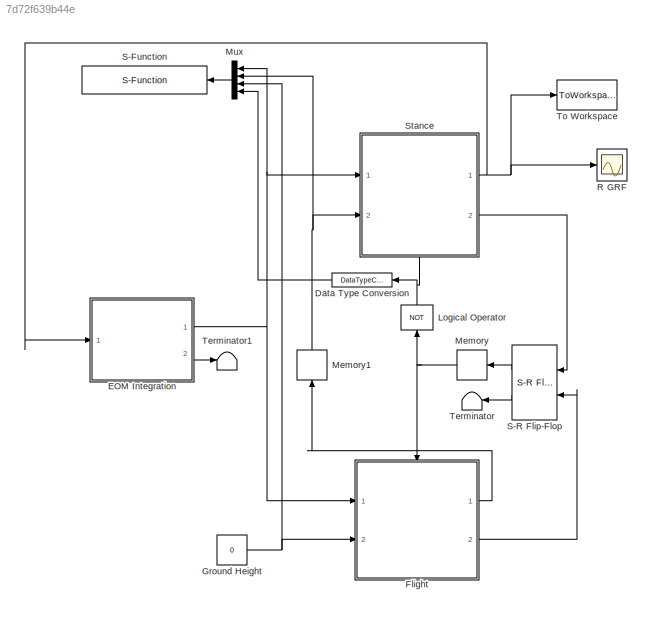
MODEL slx_7d72f639b44e
KIND model
CONFIG AbsTol = 1e-6
CONFIG FixedStep = auto
CONFIG InitFcn = rng shuffle
CONFIG MaxStep = 1e-3
CONFIG MinStep = auto
CONFIG RelTol = 1e-4
CONFIG SampleTimeConstraint = Unconstrained
CONFIG Solver = ode45
CONFIG SolverMode = Auto
CONFIG SolverName = ode45
CONFIG StartTime = 0.0
CONFIG StopTime = 50
BLOCK [DataTypeConversion] Data Type Conversion
  OutDataTypeStr = double
  RndMeth = Floor
  SaturateOnIntegerOverflow = off
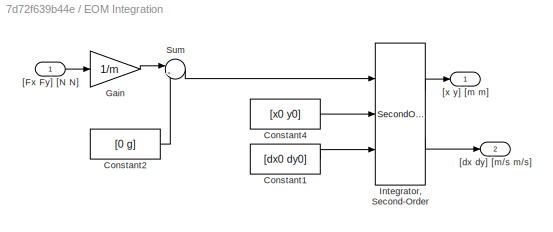
BLOCK [SubSystem] EOM Integration
  Ports = [1, 2]
  RequestExecContextInheritance = off
  Variant = off
BLOCK [Constant] EOM Integration/Constant1
  Value = [dx0 dy0]
BLOCK [Constant] EOM Integration/Constant2
  Value = [0 g]
BLOCK [Constant] EOM Integration/Constant4
  Value = [x0 y0]
BLOCK [Gain] EOM Integration/Gain
  Gain = 1/m
  OutDataTypeStr = Inherit: Inherit via internal rule
  ParamDataTypeStr = Inherit: Inherit via internal rule
  SaturateOnIntegerOverflow = off
BLOCK [SecondOrderIntegrator] EOM Integration/Integrator, Second-Order
  ICSourceDXDT = external
  ICSourceX = external
  Ports = [3, 2]
BLOCK [Sum] EOM Integration/Sum
  IconShape = round
  InputSameDT = off
  Inputs = |+-
  OutDataTypeStr = Inherit: Inherit via internal rule
  Ports = [2, 1]
  SaturateOnIntegerOverflow = off
BLOCK [Inport] EOM Integration/[Fx Fy] [N N]
  IconDisplay = Port number
BLOCK [Outport] EOM Integration/[dx dy] [m//s m//s]
  IconDisplay = Port number
  Port = 2
BLOCK [Outport] EOM Integration/[x y] [m m]
  IconDisplay = Port number
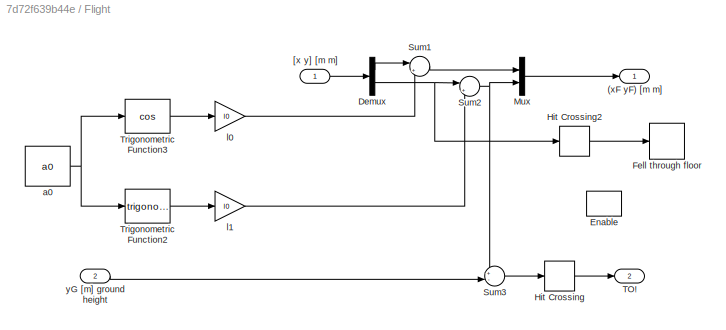
BLOCK [SubSystem] Flight
  Ports = [2, 2, 1]
  RequestExecContextInheritance = off
  Variant = off
BLOCK [Outport] Flight/(xF yF) [m m]
  AttributesFormatString = %<OutputWhenDisabled>
  IconDisplay = Port number
  InitialOutput = 0
BLOCK [Demux] Flight/Demux
  DisplayOption = bar
  Outputs = 2
  Ports = [1, 2]
BLOCK [EnablePort] Flight/Enable
  Ports = []
  StatesWhenEnabling = reset
BLOCK [Stop] Flight/Fell through floor
BLOCK [HitCross] Flight/Hit Crossing
  HitCrossingDirection = falling
  Ports = [1, 1]
BLOCK [HitCross] Flight/Hit Crossing2
  HitCrossingDirection = falling
  Ports = [1, 1]
BLOCK [Mux] Flight/Mux
  DisplayOption = bar
  Inputs = 2
  Ports = [2, 1]
BLOCK [Sum] Flight/Sum1
  IconShape = round
  InputSameDT = off
  Inputs = |++
  OutDataTypeStr = Inherit: Inherit via internal rule
  Ports = [2, 1]
  SaturateOnIntegerOverflow = off
BLOCK [Sum] Flight/Sum2
  IconShape = round
  InputSameDT = off
  Inputs = |+-
  OutDataTypeStr = Inherit: Inherit via internal rule
  Ports = [2, 1]
  SaturateOnIntegerOverflow = off
BLOCK [Sum] Flight/Sum3
  IconShape = round
  InputSameDT = off
  Inputs = +-|
  OutDataTypeStr = Inherit: Inherit via internal rule
  Ports = [2, 1]
  SaturateOnIntegerOverflow = off
BLOCK [Outport] Flight/TO!
  IconDisplay = Port number
  InitialOutput = 0
  OutputWhenDisabled = reset
  Port = 2
BLOCK [Trigonometry] Flight/Trigonometric Function2
  Ports = [1, 1]
BLOCK [Trigonometry] Flight/Trigonometric Function3
  Operator = cos
  Ports = [1, 1]
BLOCK [Inport] Flight/[x y] [m m]
  IconDisplay = Port number
BLOCK [Constant] Flight/a0
  Value = a0
BLOCK [Gain] Flight/l0
  Gain = l0
  OutDataTypeStr = Inherit: Inherit via internal rule
  ParamDataTypeStr = Inherit: Inherit via internal rule
  SaturateOnIntegerOverflow = off
BLOCK [Gain] Flight/l1
  Gain = l0
  OutDataTypeStr = Inherit: Inherit via internal rule
  ParamDataTypeStr = Inherit: Inherit via internal rule
  SaturateOnIntegerOverflow = off
BLOCK [Inport] Flight/yG [m] ground height
  IconDisplay = Port number
  Port = 2
BLOCK [Constant] Ground Height
  Value = 0
BLOCK [Logic] Logical Operator
  AllPortsSameDT = off
  Operator = NOT
  OutDataTypeStr = boolean
  Ports = [1, 1]
BLOCK [Memory] Memory
  X0 = 1
BLOCK [Memory] Memory1
  X0 = [0 0]
BLOCK [Mux] Mux
  DisplayOption = bar
  Ports = [4, 1]
BLOCK [Scope] R GRF
  Ports = [1]
  ScopeSpecificationString = C++SS(StrPVP('Location','[390, 72, 714, 311]'),StrPVP('Open','off'),MxPVP('AxesTitles',24,'struct(''axes1'',''%<SignalLabel>'')'),MxPVP('ScopeGraphics',28,'struct(''FigureColor'',''[0.156862745098039 0.156862745098039 0.156862745098039]'',''AxesColor'',''[0 0 0]'',''AxesTickColor'',''[0.686274509803922 0.686274509803922 0.686274509803922]'',''LineColors'',''[1 1 0;1 0 1;0 1 1;1 0 0;0 1 0;0 0 1]'',...<+306ch>
BLOCK [S-Function] S-Function
  EnableBusSupport = off
  FunctionName = AnimSMR
  Parameters = 0.01
  Ports = [1]
  SFunctionDeploymentMode = off
BLOCK [Reference] S-R Flip-Flop  REF=simulink_extras/Flip Flops/S-R
Flip-Flop
  Ports = [2, 2]
  SourceBlock = simulink_extras/Flip Flops/S-R\nFlip-Flop
  SourceType = SRFlipFlop
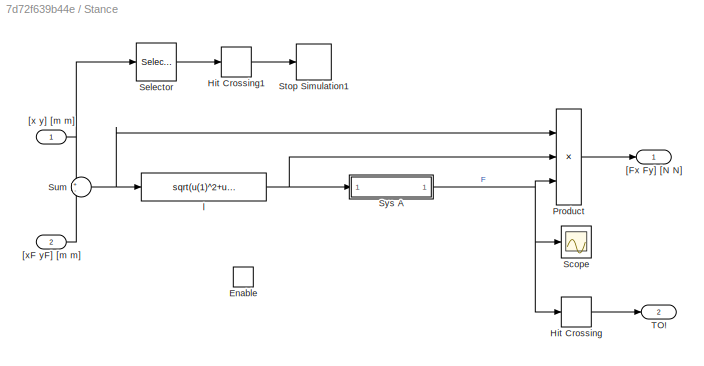
BLOCK [SubSystem] Stance
  Ports = [2, 2, 1]
  RequestExecContextInheritance = off
  Variant = off
BLOCK [EnablePort] Stance/Enable
  Ports = []
  StatesWhenEnabling = reset
BLOCK [HitCross] Stance/Hit Crossing
  HitCrossingDirection = falling
  Ports = [1, 1]
BLOCK [HitCross] Stance/Hit Crossing1
  HitCrossingDirection = falling
  Ports = [1, 1]
BLOCK [Product] Stance/Product
  InputSameDT = off
  Inputs = */*
  OutDataTypeStr = Inherit: Inherit via internal rule
  Ports = [3, 1]
  SaturateOnIntegerOverflow = off
BLOCK [Scope] Stance/Scope
  Ports = [1]
  ScopeSpecificationString = C++SS(StrPVP('Location','[403, 72, 963, 492]'),StrPVP('Open','off'),MxPVP('AxesTitles',24,'struct(''axes1'',''%<SignalLabel>'')'),MxPVP('ScopeGraphics',28,'struct(''FigureColor'',''[0.5 0.5 0.5]'',''AxesColor'',''[0 0 0]'',''AxesTickColor'',''[1 1 1]'',''LineColors'',''[1 1 0;1 0 1;0 1 1;1 0 0;0 1 0;0 0 1]'',''LineStyles'',''-|-|-|-|-|-'',''LineWidths'',''[0.5 0.5 0.5 0.5 0.5 0.5]'',''MarkerStyles...<+264ch>
BLOCK [Selector] Stance/Selector
  IndexOptions = Index vector (dialog)
  Indices = [2]
  InputPortWidth = 2
  OutputSizes = 1
  Ports = [1, 1]
BLOCK [Stop] Stance/Stop Simulation1
BLOCK [Sum] Stance/Sum
  IconShape = round
  InputSameDT = off
  Inputs = +-
  OutDataTypeStr = Inherit: Inherit via internal rule
  Ports = [2, 1]
  SaturateOnIntegerOverflow = off
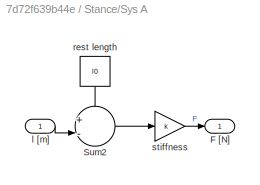
BLOCK [SubSystem] Stance/Sys A
  Ports = [1, 1]
  RequestExecContextInheritance = off
  Variant = off
BLOCK [Outport] Stance/Sys A/F [N]
  IconDisplay = Port number
BLOCK [Sum] Stance/Sys A/Sum2
  IconShape = round
  InputSameDT = off
  Inputs = +-|
  OutDataTypeStr = Inherit: Inherit via internal rule
  Ports = [2, 1]
  SaturateOnIntegerOverflow = off
BLOCK [Inport] Stance/Sys A/l [m]
  IconDisplay = Port number
BLOCK [Constant] Stance/Sys A/rest length
  Value = l0
BLOCK [Gain] Stance/Sys A/stiffness
  Gain = k
  OutDataTypeStr = Inherit: Inherit via internal rule
  ParamDataTypeStr = Inherit: Inherit via internal rule
  SaturateOnIntegerOverflow = off
BLOCK [Outport] Stance/TO!
  AttributesFormatString = when disabled: "%<OutputWhenDisabled>"
  IconDisplay = Port number
  InitialOutput = [0]
  OutputWhenDisabled = reset
  Port = 2
BLOCK [Outport] Stance/[Fx Fy] [N N]
  AttributesFormatString = when disabled: "%<OutputWhenDisabled>"
  IconDisplay = Port number
  InitialOutput = [0 0]
  OutputWhenDisabled = reset
BLOCK [Inport] Stance/[x y] [m m]
  IconDisplay = Port number
BLOCK [Inport] Stance/[xF yF] [m m]
  IconDisplay = Port number
  Port = 2
BLOCK [Fcn] Stance/l
  Expr = sqrt(u(1)^2+u(2)^2)
BLOCK [Terminator] Terminator
BLOCK [Terminator] Terminator1
BLOCK [ToWorkspace] To Workspace
  FixptAsFi = on
  MaxDataPoints = 1
  Ports = [1]
  SampleTime = -1
  Save2DSignal = 3-D array (concatenate along third dimension)
  SaveFormat = Timeseries
  VariableName = Fout
LINE Data Type Conversion:1 -> Mux:4
LINE EOM Integration/Constant1:1 -> EOM Integration/Integrator, Second-Order:3
LINE EOM Integration/Constant2:1 -> EOM Integration/Sum:2
LINE EOM Integration/Constant4:1 -> EOM Integration/Integrator, Second-Order:2
LINE EOM Integration/Gain:1 -> EOM Integration/Sum:1
LINE EOM Integration/Integrator, Second-Order:1 -> EOM Integration/[x y] [m m]:1
LINE EOM Integration/Integrator, Second-Order:2 -> EOM Integration/[dx dy] [m//s m//s]:1
LINE EOM Integration/Sum:1 -> EOM Integration/Integrator, Second-Order:1
LINE EOM Integration/[Fx Fy] [N N]:1 -> EOM Integration/Gain:1
NET EOM Integration:1 -> Flight:1, Mux:1, Stance:1
LINE EOM Integration:2 -> Terminator1:1
LINE Flight/Demux:1 -> Flight/Sum1:1
NET Flight/Demux:2 -> Flight/Hit Crossing2:1, Flight/Sum2:1
LINE Flight/Hit Crossing2:1 -> Flight/Fell through floor:1
LINE Flight/Hit Crossing:1 -> Flight/TO!:1
LINE Flight/Mux:1 -> Flight/(xF yF) [m m]:1
LINE Flight/Sum1:1 -> Flight/Mux:1
NET Flight/Sum2:1 -> Flight/Mux:2, Flight/Sum3:1
LINE Flight/Sum3:1 -> Flight/Hit Crossing:1
LINE Flight/Trigonometric Function2:1 -> Flight/l1:1
LINE Flight/Trigonometric Function3:1 -> Flight/l0:1
LINE Flight/[x y] [m m]:1 -> Flight/Demux:1
NET Flight/a0:1 -> Flight/Trigonometric Function2:1, Flight/Trigonometric Function3:1
LINE Flight/l0:1 -> Flight/Sum1:2
LINE Flight/l1:1 -> Flight/Sum2:2
LINE Flight/yG [m] ground height:1 -> Flight/Sum3:2
LINE Flight:1 -> Memory1:1
LINE Flight:2 -> S-R Flip-Flop:2
NET Ground Height:1 -> Flight:2, Mux:3
NET Logical Operator:1 -> Data Type Conversion:1, Stance:enable
NET Memory1:1 -> Mux:2, Stance:2
NET Memory:1 -> Flight:enable, Logical Operator:1
LINE Mux:1 -> S-Function:1
LINE S-R Flip-Flop:1 -> Memory:1
LINE S-R Flip-Flop:2 -> Terminator:1
LINE Stance/Hit Crossing1:1 -> Stance/Stop Simulation1:1
LINE Stance/Hit Crossing:1 -> Stance/TO!:1
LINE Stance/Product:1 -> Stance/[Fx Fy] [N N]:1
LINE Stance/Selector:1 -> Stance/Hit Crossing1:1
NET Stance/Sum:1 -> Stance/Product:1, Stance/l:1
LINE Stance/Sys A/Sum2:1 -> Stance/Sys A/stiffness:1
LINE Stance/Sys A/l [m]:1 -> Stance/Sys A/Sum2:2
LINE Stance/Sys A/rest length:1 -> Stance/Sys A/Sum2:1
LINE Stance/Sys A/stiffness:1 -> Stance/Sys A/F [N]:1
NET Stance/Sys A:1 -> Stance/Hit Crossing:1, Stance/Product:3, Stance/Scope:1
NET Stance/[x y] [m m]:1 -> Stance/Selector:1, Stance/Sum:1
LINE Stance/[xF yF] [m m]:1 -> Stance/Sum:2
NET Stance/l:1 -> Stance/Product:2, Stance/Sys A:1
NET Stance:1 -> EOM Integration:1, R GRF:1, To Workspace:1
LINE Stance:2 -> S-R Flip-Flop:1
note: NET lines group one-source signal fan-out (src -> all destinations, sorted); 1:1 wires keep LINE
